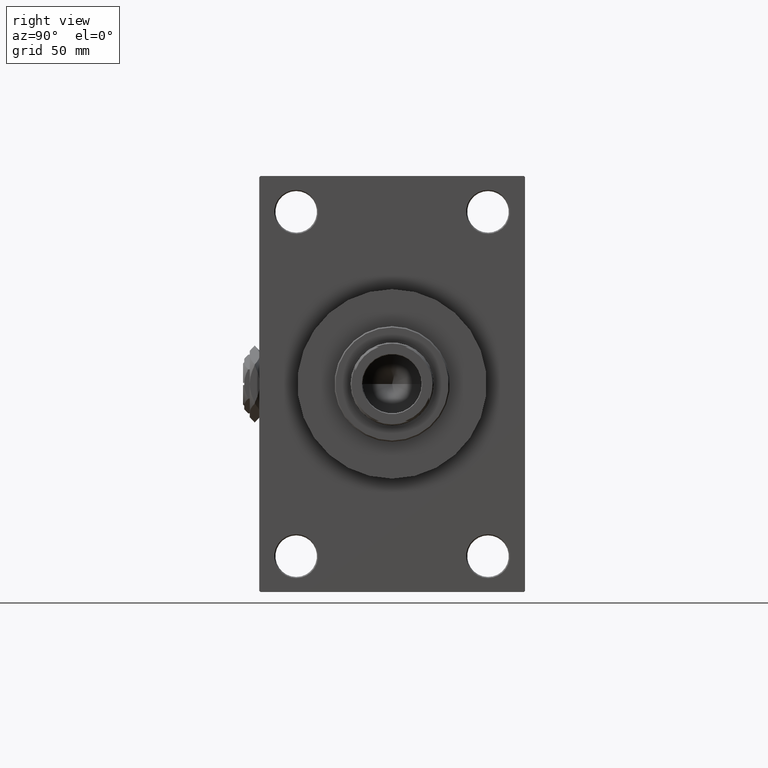
[diagram: clean part render]
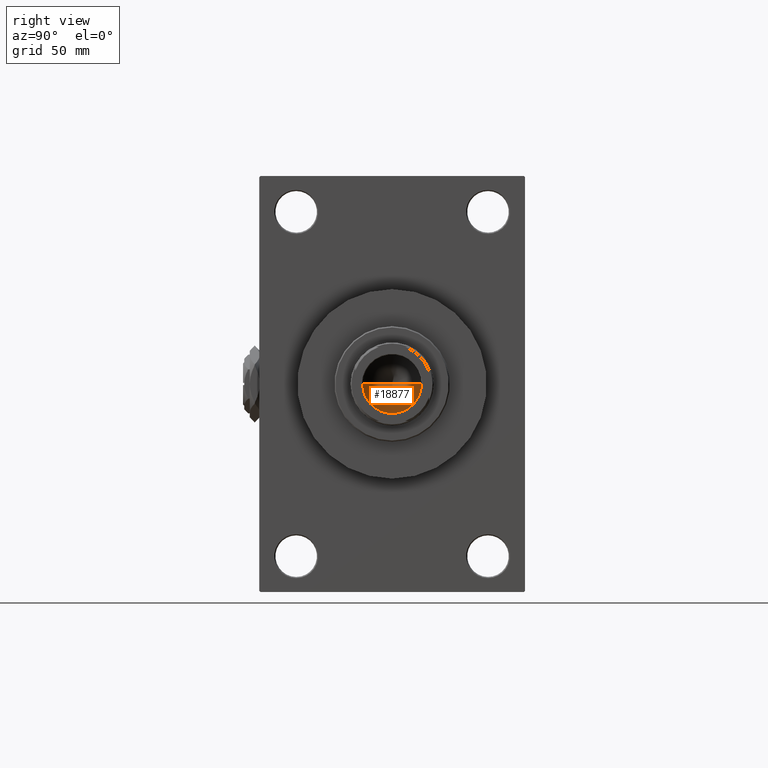
[diagram: same view with one face highlighted and labeled with its STEP entity id]
A machine part, right view. The second image highlights one B-rep face of the part: STEP entity #18877.
In plain terms, the highlighted conical surface has half-angle 59 deg.
Its self-contained STEP definition (entity closure, byte-faithful):
#476 = EDGE_CURVE ( 'NONE', #15242, #8000, #23022, .T. ) ;
#775 = DIRECTION ( 'NONE',  ( -0.8571673007021117785, 1.049727191138617956E-16, 0.5150380749100550437 ) ) ;
#1017 = CARTESIAN_POINT ( 'NONE',  ( 0.000000000000000000, 0.000000000000000000, 121.0000000000000142 ) ) ;
#1232 = VERTEX_POINT ( 'NONE', #45119 ) ;
#4083 = EDGE_CURVE ( 'NONE', #15242, #1232, #42579, .T. ) ;
#6227 = AXIS2_PLACEMENT_3D ( 'NONE', #40391, #25624, #41136 ) ;
#8000 = VERTEX_POINT ( 'NONE', #39705 ) ;
#9652 = EDGE_LOOP ( 'NONE', ( #36751, #38464, #29874 ) ) ;
#12502 = CARTESIAN_POINT ( 'NONE',  ( -12.74999999999999112, 1.561424668912874125E-15, 121.0000000000000142 ) ) ;
#15242 = VERTEX_POINT ( 'NONE', #48913 ) ;
#16497 = VECTOR ( 'NONE', #775, 1000.000000000000000 ) ;
#18877 = ADVANCED_FACE ( 'NONE', ( #34529 ), #21363, .F. ) ;
#20375 = EDGE_CURVE ( 'NONE', #1232, #8000, #27778, .T. ) ;
#21363 = CONICAL_SURFACE ( 'NONE', #34149, 12.74999999999999112, 1.029744258676653423 ) ;
#23022 = LINE ( 'NONE', #12502, #16497 ) ;
#23510 = DIRECTION ( 'NONE',  ( -0.000000000000000000, -0.000000000000000000, 1.000000000000000000 ) ) ;
#25624 = DIRECTION ( 'NONE',  ( -0.000000000000000000, -0.000000000000000000, 1.000000000000000000 ) ) ;
#27778 = CIRCLE ( 'NONE', #6227, 12.74999999999999112 ) ;
#29874 = ORIENTED_EDGE ( 'NONE', *, *, #20375, .T. ) ;
#34149 = AXIS2_PLACEMENT_3D ( 'NONE', #1017, #23510, #45782 ) ;
#34529 = FACE_OUTER_BOUND ( 'NONE', #9652, .T. ) ;
#36751 = ORIENTED_EDGE ( 'NONE', *, *, #476, .F. ) ;
#38464 = ORIENTED_EDGE ( 'NONE', *, *, #4083, .T. ) ;
#39705 = CARTESIAN_POINT ( 'NONE',  ( -12.74999999999999112, 1.561424668912874125E-15, 121.0000000000000142 ) ) ;
#40391 = CARTESIAN_POINT ( 'NONE',  ( 0.000000000000000000, 0.000000000000000000, 121.0000000000000142 ) ) ;
#41136 = DIRECTION ( 'NONE',  ( 1.000000000000000000, 0.000000000000000000, 0.000000000000000000 ) ) ;
#42052 = VECTOR ( 'NONE', #46330, 1000.000000000000000 ) ;
#42089 = CARTESIAN_POINT ( 'NONE',  ( 12.74999999999999112, 0.000000000000000000, 121.0000000000000142 ) ) ;
#42579 = LINE ( 'NONE', #42089, #42052 ) ;
#45119 = CARTESIAN_POINT ( 'NONE',  ( 12.74999999999999112, 0.000000000000000000, 121.0000000000000142 ) ) ;
#45782 = DIRECTION ( 'NONE',  ( 1.000000000000000000, 0.000000000000000000, 0.000000000000000000 ) ) ;
#46330 = DIRECTION ( 'NONE',  ( 0.8571673007021117785, 0.000000000000000000, 0.5150380749100550437 ) ) ;
#48913 = CARTESIAN_POINT ( 'NONE',  ( -1.323906893019387300E-14, 0.000000000000000000, 113.3390271073986071 ) ) ;